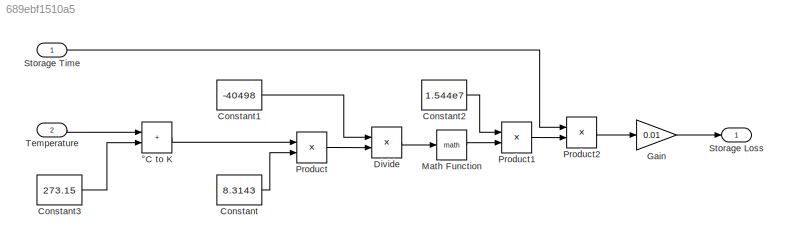
MODEL slx_689ebf1510a5
KIND model
CONFIG AbsTol = auto
CONFIG EnableMultiTasking = off
CONFIG FixedStep = auto
CONFIG MaxStep = auto
CONFIG MinStep = auto
CONFIG RelTol = 1e-3
CONFIG SampleTimeConstraint = Unconstrained
CONFIG SolverName = VariableStepAuto
CONFIG StartTime = 0.0
CONFIG StopTime = 10.0
BLOCK [Constant] Constant
  Value = 8.3143
BLOCK [Constant] Constant1
  Value = -40498
BLOCK [Constant] Constant2
  Value = 1.544e7
BLOCK [Constant] Constant3
  Value = 273.15
BLOCK [Product] Divide
  Inputs = */
BLOCK [Gain] Gain
  Gain = 0.01
BLOCK [Math] Math Function
BLOCK [Product] Product
BLOCK [Product] Product1
BLOCK [Product] Product2
BLOCK [Outport] Storage Loss
BLOCK [Inport] Storage Time
BLOCK [Inport] Temperature
  Port = 2
BLOCK [Sum] °C to K
  IconShape = rectangular
LINE Constant1:1 -> Divide:1
LINE Constant2:1 -> Product1:1
LINE Constant3:1 -> °C to K:2
LINE Constant:1 -> Product:2
LINE Divide:1 -> Math Function:1
LINE Gain:1 -> Storage Loss:1
LINE Math Function:1 -> Product1:2
LINE Product1:1 -> Product2:2
LINE Product2:1 -> Gain:1
LINE Product:1 -> Divide:2
LINE Storage Time:1 -> Product2:1
LINE Temperature:1 -> °C to K:1
LINE °C to K:1 -> Product:1
